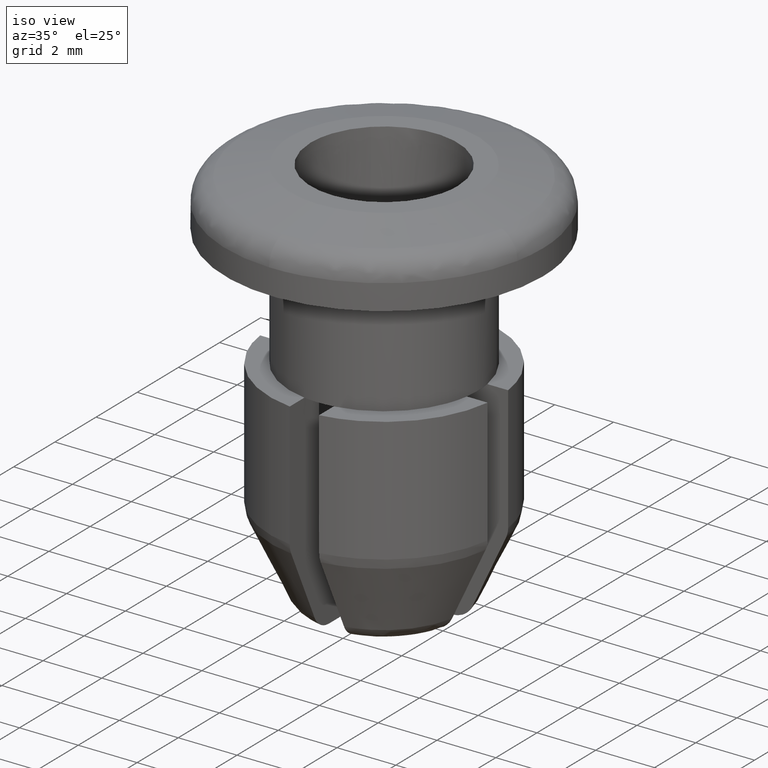
[diagram: clean part render]
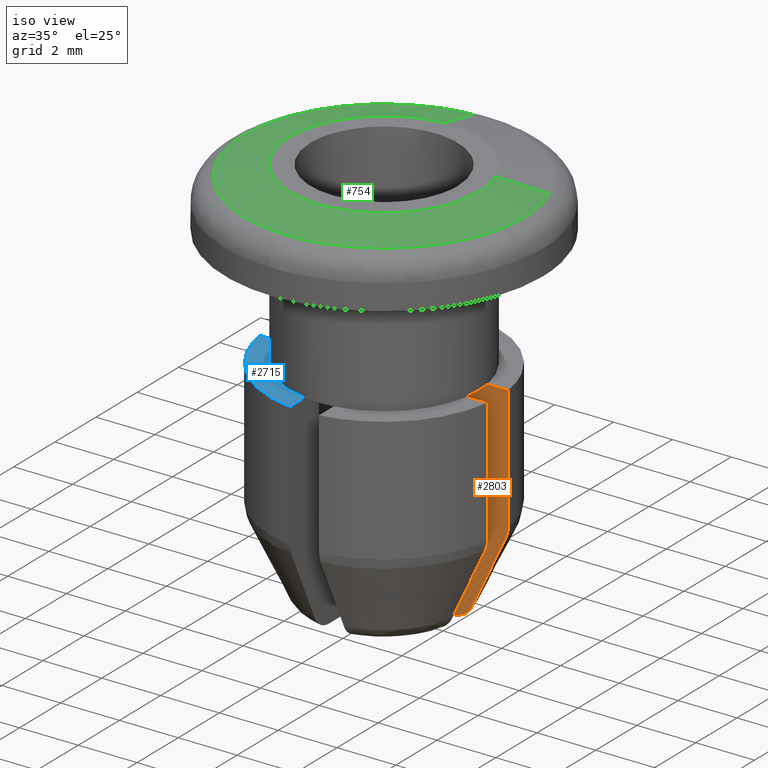
[diagram: same view with three faces highlighted in distinct colors, each labeled with its STEP entity id]
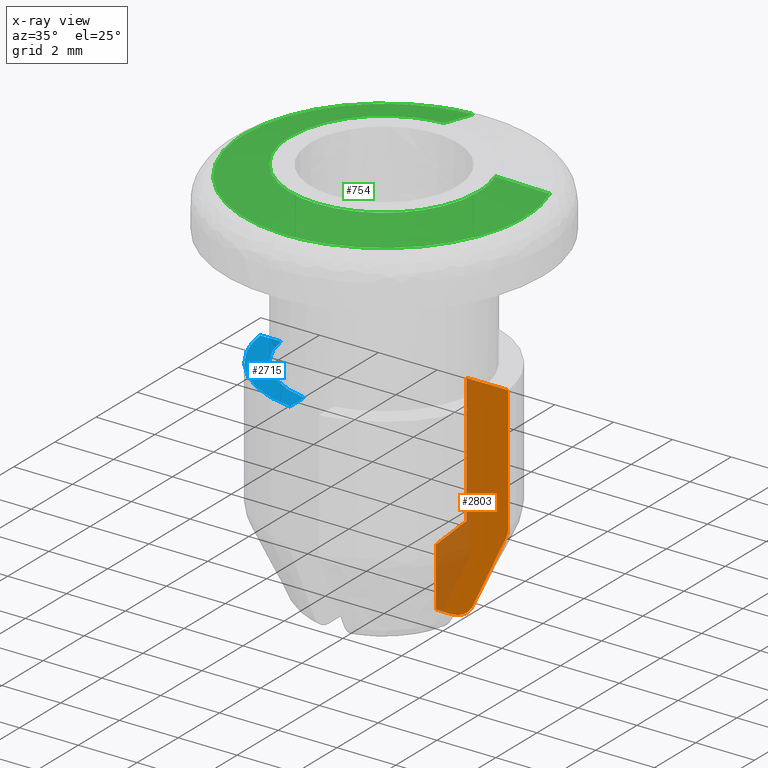
[diagram: x-ray of the same camera — body ghosted, the three highlighted faces saturated]
A machine part, iso view with three faces highlighted in distinct colors.
The next image is the same camera in x-ray (body ghosted, the three faces saturated) — at least one of them is partly hidden behind the body in this view.
Their STEP definitions:

[orange] entity #2803 — the highlighted face is a freeform B-spline surface patch.
#126=CARTESIAN_POINT('',(2.449489742783180,0.500000000000000,-10.500363376784501));
#127=VERTEX_POINT('',#126);
#141=CARTESIAN_POINT('',(2.449489742783180,0.500000000000000,-6.099999999999901));
#142=VERTEX_POINT('',#141);
#143=CARTESIAN_POINT('',(2.449489742783180,0.500000000000000,-6.099999999999901));
#144=CARTESIAN_POINT('',(2.449489742783180,0.500000000000000,-10.500363376784501));
#145=QUASI_UNIFORM_CURVE('',1,(#143,#144),.UNSPECIFIED.,.F.,.U.);
#146=EDGE_CURVE('',#142,#127,#145,.T.);
#897=CARTESIAN_POINT('',(3.160696125855820,0.500000000000000,-6.099999999999881));
#898=VERTEX_POINT('',#897);
#1186=CARTESIAN_POINT('',(1.414213562373094,0.500000000000000,-11.500363376784501));
#1187=VERTEX_POINT('',#1186);
#1201=CARTESIAN_POINT('',(2.449489742783180,0.500000000000000,-10.500363376784501));
#1202=CARTESIAN_POINT('',(2.278134806261935,0.500000000000000,-10.668256240538120));
#1203=CARTESIAN_POINT('',(2.106452249628085,0.500000000000000,-10.835812576086161));
#1204=CARTESIAN_POINT('',(1.761745751085505,0.500000000000000,-11.169547389223640));
#1205=CARTESIAN_POINT('',(1.588763213320622,0.500000000000000,-11.335796387666170));
#1206=CARTESIAN_POINT('',(1.414213562373093,0.500000000000000,-11.500363376784501));
#1207=B_SPLINE_CURVE_WITH_KNOTS('',3,(#1201,#1202,#1203,#1204,#1205,#1206),.UNSPECIFIED.,.F.,.U.,(4,2,4),(0.0,0.500000000000000,1.0),.UNSPECIFIED.);
#1208=EDGE_CURVE('',#127,#1187,#1207,.T.);
#1415=CARTESIAN_POINT('',(2.449489742783180,0.500000000000000,-6.099999999999901));
#1416=CARTESIAN_POINT('',(3.160696125855820,0.500000000000000,-6.099999999999881));
#1417=QUASI_UNIFORM_CURVE('',1,(#1415,#1416),.UNSPECIFIED.,.F.,.U.);
#1418=EDGE_CURVE('',#142,#898,#1417,.T.);
#1505=CARTESIAN_POINT('',(1.414213562373094,0.500000000000000,-13.500299999999999));
#1506=VERTEX_POINT('',#1505);
#1507=CARTESIAN_POINT('',(1.959617758645800,0.500000000000000,-13.500299999999999));
#1508=VERTEX_POINT('',#1507);
#1509=CARTESIAN_POINT('',(1.414213562373094,0.500000000000000,-13.500299999999999));
#1510=CARTESIAN_POINT('',(1.959617758645800,0.500000000000000,-13.500299999999999));
#1511=QUASI_UNIFORM_CURVE('',1,(#1509,#1510),.UNSPECIFIED.,.F.,.U.);
#1512=EDGE_CURVE('',#1506,#1508,#1511,.T.);
#1725=CARTESIAN_POINT('',(2.659426441461120,0.500000000000000,-13.058784187287420));
#1726=VERTEX_POINT('',#1725);
#1727=CARTESIAN_POINT('',(1.959617758645800,0.500000000000000,-13.500299999999999));
#1728=CARTESIAN_POINT('',(1.995870260834213,0.500000000000000,-13.500299999999999));
#1729=CARTESIAN_POINT('',(2.032074988127340,0.500000000000000,-13.497844263011711));
#1730=CARTESIAN_POINT('',(2.104385885043721,0.500000000000000,-13.487866703302871));
#1731=CARTESIAN_POINT('',(2.140582571796804,0.500000000000000,-13.480273188047519));
#1732=CARTESIAN_POINT('',(2.210582539605143,0.500000000000000,-13.460385630809400));
#1733=CARTESIAN_POINT('',(2.244676879156075,0.500000000000000,-13.448069990180750));
#1734=CARTESIAN_POINT('',(2.311047923019859,0.500000000000000,-13.418678363481970));
#1735=CARTESIAN_POINT('',(2.343499881206968,0.500000000000000,-13.401491538657289));
#1736=CARTESIAN_POINT('',(2.436762051251562,0.500000000000000,-13.343091250395910));
#1737=CARTESIAN_POINT('',(2.492105625441049,0.500000000000000,-13.296233015496689));
#1738=CARTESIAN_POINT('',(2.564766211409184,0.500000000000000,-13.213933349785490));
#1739=CARTESIAN_POINT('',(2.587089104371746,0.500000000000000,-13.184554053184931));
#1740=CARTESIAN_POINT('',(2.626723384111980,0.500000000000000,-13.123628106619501));
#1741=CARTESIAN_POINT('',(2.644237852533169,0.500000000000000,-13.091863515307750));
#1742=CARTESIAN_POINT('',(2.659426441461120,0.500000000000000,-13.058784187287420));
#1743=B_SPLINE_CURVE_WITH_KNOTS('',3,(#1727,#1728,#1729,#1730,#1731,#1732,#1733,#1734,#1735,#1736,#1737,#1738,#1739,#1740,#1741,#1742),.UNSPECIFIED.,.F.,.U.,(4,2,2,2,2,2,2,4),(0.0,0.124999999999999,0.249999999999999,0.374999999999998,0.499999999999997,0.749999999999998,0.874999999999999,1.0),.UNSPECIFIED.);
#1744=EDGE_CURVE('',#1508,#1726,#1743,.T.);
#2023=CARTESIAN_POINT('',(3.796920079485475,0.500000000000000,-10.650999999999881));
#2024=VERTEX_POINT('',#2023);
#2025=CARTESIAN_POINT('',(2.659426441461120,0.500000000000000,-13.058784187287420));
#2026=CARTESIAN_POINT('',(3.040188986431455,0.500000000000000,-12.256946791583839));
#2027=CARTESIAN_POINT('',(3.418877663586606,0.500000000000000,-11.454123765753140));
#2028=CARTESIAN_POINT('',(3.796920079485477,0.500000000000000,-10.650999999999881));
#2029=QUASI_UNIFORM_CURVE('',3,(#2025,#2026,#2027,#2028),.UNSPECIFIED.,.F.,.U.);
#2030=EDGE_CURVE('',#1726,#2024,#2029,.T.);
#2230=CARTESIAN_POINT('',(3.867815921162755,0.500000000000000,-10.333900000000000));
#2231=VERTEX_POINT('',#2230);
#2232=CARTESIAN_POINT('',(3.796920079485509,0.500000000000000,-10.650999999999890));
#2233=CARTESIAN_POINT('',(3.820125297994603,0.500000000000000,-10.601702191895900));
#2234=CARTESIAN_POINT('',(3.837839464490058,0.500000000000000,-10.550220786712851));
#2235=CARTESIAN_POINT('',(3.861895604854134,0.500000000000000,-10.442735657756250));
#2236=CARTESIAN_POINT('',(3.867832769548388,0.500000000000000,-10.388334337714850));
#2237=CARTESIAN_POINT('',(3.867815921162755,0.500000000000000,-10.333900000000000));
#2238=B_SPLINE_CURVE_WITH_KNOTS('',3,(#2232,#2233,#2234,#2235,#2236,#2237),.UNSPECIFIED.,.F.,.U.,(4,2,4),(0.0,0.500000000000000,1.0),.UNSPECIFIED.);
#2239=EDGE_CURVE('',#2024,#2231,#2238,.T.);
#2468=CARTESIAN_POINT('',(3.867815921162740,0.500000000000000,-6.099999999999901));
#2469=VERTEX_POINT('',#2468);
#2470=CARTESIAN_POINT('',(3.867815921162755,0.500000000000000,-10.333900000000000));
#2471=CARTESIAN_POINT('',(3.867815921162740,0.500000000000000,-6.099999999999901));
#2472=QUASI_UNIFORM_CURVE('',1,(#2470,#2471),.UNSPECIFIED.,.F.,.U.);
#2473=EDGE_CURVE('',#2231,#2469,#2472,.T.);
#2639=CARTESIAN_POINT('',(3.160696125855820,0.500000000000000,-6.099999999999881));
#2640=CARTESIAN_POINT('',(3.867815921162740,0.500000000000000,-6.099999999999901));
#2641=QUASI_UNIFORM_CURVE('',1,(#2639,#2640),.UNSPECIFIED.,.F.,.U.);
#2642=EDGE_CURVE('',#898,#2469,#2641,.T.);
#2782=CARTESIAN_POINT('',(1.291656106274444,0.500000000000000,-5.730354890405649));
#2783=CARTESIAN_POINT('',(1.291656106274444,0.500000000000000,-13.869945175758071));
#2784=CARTESIAN_POINT('',(3.990373421135234,0.500000000000000,-5.730354890405649));
#2785=CARTESIAN_POINT('',(3.990373421135234,0.500000000000000,-13.869945175758071));
#2786=B_SPLINE_SURFACE_WITH_KNOTS('',1,1,((#2782,#2784),(#2783,#2785)),.UNSPECIFIED.,.F.,.F.,.U.,(2,2),(2,2),(0.0,8.139590285352423),(0.0,2.698717314860790),.UNSPECIFIED.);
#2787=ORIENTED_EDGE('',*,*,#1418,.F.);
#2788=ORIENTED_EDGE('',*,*,#146,.T.);
#2789=ORIENTED_EDGE('',*,*,#1208,.T.);
#2790=CARTESIAN_POINT('',(1.414213562373094,0.500000000000000,-11.500363376784501));
#2791=CARTESIAN_POINT('',(1.414213562373094,0.500000000000000,-13.500299999999999));
#2792=QUASI_UNIFORM_CURVE('',1,(#2790,#2791),.UNSPECIFIED.,.F.,.U.);
#2793=EDGE_CURVE('',#1187,#1506,#2792,.T.);
#2794=ORIENTED_EDGE('',*,*,#2793,.T.);
#2795=ORIENTED_EDGE('',*,*,#1512,.T.);
#2796=ORIENTED_EDGE('',*,*,#1744,.T.);
#2797=ORIENTED_EDGE('',*,*,#2030,.T.);
#2798=ORIENTED_EDGE('',*,*,#2239,.T.);
#2799=ORIENTED_EDGE('',*,*,#2473,.T.);
#2800=ORIENTED_EDGE('',*,*,#2642,.F.);
#2801=EDGE_LOOP('',(#2787,#2788,#2789,#2794,#2795,#2796,#2797,#2798,#2799,#2800));
#2802=FACE_OUTER_BOUND('',#2801,.T.);
#2803=ADVANCED_FACE('',(#2802),#2786,.T.);

[blue] entity #2715 — the highlighted face is a freeform B-spline surface patch.
#845=CARTESIAN_POINT('',(-2.321609423222823,-2.202300998047945,-6.099999999999911));
#846=VERTEX_POINT('',#845);
#852=CARTESIAN_POINT('',(-0.500000000000011,-3.160696125855820,-6.100000000000001));
#853=VERTEX_POINT('',#852);
#854=CARTESIAN_POINT('',(-2.321609423222822,-2.202300998047945,-6.099999999999911));
#855=CARTESIAN_POINT('',(-1.573570263137163,-2.990864825979360,-6.099999999999946));
#856=CARTESIAN_POINT('',(-0.500000000000011,-3.160696125855820,-6.100000000000001));
#864=(BOUNDED_CURVE()B_SPLINE_CURVE(2,(#854,#855,#856),.UNSPECIFIED.,.F.,.U.)B_SPLINE_CURVE_WITH_KNOTS((3,3),(0.479718116204390,1.0),.UNSPECIFIED.)CURVE()GEOMETRIC_REPRESENTATION_ITEM()RATIONAL_B_SPLINE_CURVE((0.904610816140017,0.900577880386593,1.0))REPRESENTATION_ITEM(''));
#865=EDGE_CURVE('',#846,#853,#864,.T.);
#1040=CARTESIAN_POINT('',(-3.160696125855820,-0.500000000000011,-6.099999999999881));
#1041=VERTEX_POINT('',#1040);
#1055=CARTESIAN_POINT('',(-3.160696125855820,-0.500000000000011,-6.099999999999881));
#1056=CARTESIAN_POINT('',(-3.005442021550379,-1.481422092002839,-6.099999999999880));
#1057=CARTESIAN_POINT('',(-2.321609423222822,-2.202300998047945,-6.099999999999911));
#1065=(BOUNDED_CURVE()B_SPLINE_CURVE(2,(#1055,#1056,#1057),.UNSPECIFIED.,.F.,.U.)B_SPLINE_CURVE_WITH_KNOTS((3,3),(0.0,0.479718116204391),.UNSPECIFIED.)CURVE()GEOMETRIC_REPRESENTATION_ITEM()RATIONAL_B_SPLINE_CURVE((1.0,0.908329324130901,0.904610816140017))REPRESENTATION_ITEM(''));
#1066=EDGE_CURVE('',#1041,#846,#1065,.T.);
#2603=CARTESIAN_POINT('',(-3.867815921162740,-0.500000000000011,-6.099999999999901));
#2604=VERTEX_POINT('',#2603);
#2611=CARTESIAN_POINT('',(-0.500000000000011,-3.867815921162740,-6.099999999999901));
#2612=VERTEX_POINT('',#2611);
#2618=CARTESIAN_POINT('',(-0.500000000000011,-3.867815921162742,-6.099999999999901));
#2619=CARTESIAN_POINT('',(-3.482289609849434,-3.482289609849437,-6.099999999999900));
#2620=CARTESIAN_POINT('',(-3.867815921162741,-0.500000000000013,-6.099999999999901));
#2628=(BOUNDED_CURVE()B_SPLINE_CURVE(2,(#2618,#2619,#2620),.UNSPECIFIED.,.F.,.U.)CURVE()GEOMETRIC_REPRESENTATION_ITEM()QUASI_UNIFORM_CURVE()RATIONAL_B_SPLINE_CURVE((1.0,0.791926219699679,1.0))REPRESENTATION_ITEM(''));
#2629=EDGE_CURVE('',#2612,#2604,#2628,.T.);
#2695=CARTESIAN_POINT('',(-0.331777601265414,-4.036038383126630,-6.099999999999900));
#2696=CARTESIAN_POINT('',(-4.036038410229200,-4.036038383126630,-6.099999999999901));
#2697=CARTESIAN_POINT('',(-0.331777601265414,-0.331777507925501,-6.099999999999900));
#2698=CARTESIAN_POINT('',(-4.036038410229200,-0.331777507925501,-6.099999999999901));
#2699=B_SPLINE_SURFACE_WITH_KNOTS('',1,1,((#2695,#2697),(#2696,#2698)),.UNSPECIFIED.,.F.,.F.,.U.,(2,2),(2,2),(0.0,3.704260808963786),(0.0,3.704260875201129),.UNSPECIFIED.);
#2700=CARTESIAN_POINT('',(-3.160696125855820,-0.500000000000011,-6.099999999999881));
#2701=CARTESIAN_POINT('',(-3.867815921162740,-0.500000000000011,-6.099999999999901));
#2702=QUASI_UNIFORM_CURVE('',1,(#2700,#2701),.UNSPECIFIED.,.F.,.U.);
#2703=EDGE_CURVE('',#1041,#2604,#2702,.T.);
#2704=ORIENTED_EDGE('',*,*,#2703,.T.);
#2705=ORIENTED_EDGE('',*,*,#2629,.F.);
#2706=CARTESIAN_POINT('',(-0.500000000000011,-3.867815921162740,-6.099999999999901));
#2707=CARTESIAN_POINT('',(-0.500000000000011,-3.160696125855820,-6.100000000000001));
#2708=QUASI_UNIFORM_CURVE('',1,(#2706,#2707),.UNSPECIFIED.,.F.,.U.);
#2709=EDGE_CURVE('',#2612,#853,#2708,.T.);
#2710=ORIENTED_EDGE('',*,*,#2709,.T.);
#2711=ORIENTED_EDGE('',*,*,#865,.F.);
#2712=ORIENTED_EDGE('',*,*,#1066,.F.);
#2713=EDGE_LOOP('',(#2704,#2705,#2710,#2711,#2712));
#2714=FACE_OUTER_BOUND('',#2713,.T.);
#2715=ADVANCED_FACE('',(#2714),#2699,.F.);

[green] entity #754 — the highlighted face is a freeform B-spline surface patch.
#588=CARTESIAN_POINT('',(2.959032740807782,1.111420429589253,0.008905034524213));
#589=CARTESIAN_POINT('',(3.125991545662793,0.666911262059646,0.008905034524213));
#590=CARTESIAN_POINT('',(3.154979230995207,0.192966796288025,0.008905034524213));
#591=CARTESIAN_POINT('',(3.347946027283231,-2.962012434707182,0.008905034524213));
#592=CARTESIAN_POINT('',(0.192966796288025,-3.154979230995207,0.008905034524213));
#593=CARTESIAN_POINT('',(-2.962012434707182,-3.347946027283231,0.008905034524213));
#594=CARTESIAN_POINT('',(-3.154979230995207,-0.192966796288025,0.008905034524213));
#595=CARTESIAN_POINT('',(-3.347946027283231,2.962012434707182,0.008905034524213));
#596=CARTESIAN_POINT('',(-0.192966796288025,3.154979230995207,0.008905034524213));
#597=CARTESIAN_POINT('',(4.498270282245640,1.689562072279477,-0.365329041355827));
#598=CARTESIAN_POINT('',(4.752078163409377,1.013826940691061,-0.365329041355827));
#599=CARTESIAN_POINT('',(4.796144740194292,0.293344778931245,-0.365329041355827));
#600=CARTESIAN_POINT('',(5.089489519125537,-4.502799961263047,-0.365329041355827));
#601=CARTESIAN_POINT('',(0.293344778931245,-4.796144740194292,-0.365329041355827));
#602=CARTESIAN_POINT('',(-4.502799961263047,-5.089489519125537,-0.365329041355827));
#603=CARTESIAN_POINT('',(-4.796144740194292,-0.293344778931245,-0.365329041355827));
#604=CARTESIAN_POINT('',(-5.089489519125537,4.502799961263047,-0.365329041355827));
#605=CARTESIAN_POINT('',(-0.293344778931245,4.796144740194292,-0.365329041355827));
#613=(BOUNDED_SURFACE()B_SPLINE_SURFACE(2,1,((#588,#597),(#589,#598),(#590,#599),(#591,#600),(#592,#601),(#593,#602),(#594,#603),(#595,#604),(#596,#605)),.UNSPECIFIED.,.F.,.F.,.U.)B_SPLINE_SURFACE_WITH_KNOTS((3,2,2,2,3),(2,2),(0.0,1.592272467914259,9.553634807485555,17.514997147056850,25.476359486628141),(0.0,1.0),.UNSPECIFIED.)GEOMETRIC_REPRESENTATION_ITEM()RATIONAL_B_SPLINE_SURFACE(((0.906274169979695,0.906274169979695),(0.941421356237309,0.941421356237309),(1.0,1.0),(0.707106781186548,0.707106781186548),(1.0,1.0),(0.707106781186548,0.707106781186548),(1.0,1.0),(0.707106781186548,0.707106781186548),(1.0,1.0)))REPRESENTATION_ITEM('')SURFACE());
#614=CARTESIAN_POINT('',(4.460727903092842,1.675461056579439,-0.356201380946647));
#615=VERTEX_POINT('',#614);
#616=CARTESIAN_POINT('',(4.765004006035680,0.0,-0.356201380946426));
#617=VERTEX_POINT('',#616);
#618=CARTESIAN_POINT('',(4.460727903092843,1.675461056579439,-0.356201380946647));
#619=CARTESIAN_POINT('',(4.765004006035681,0.865359922143831,-0.356201380946426));
#620=CARTESIAN_POINT('',(4.765004006035680,0.0,-0.356201380946426));
#628=(BOUNDED_CURVE()B_SPLINE_CURVE(2,(#618,#619,#620),.UNSPECIFIED.,.F.,.U.)B_SPLINE_CURVE_WITH_KNOTS((3,3),(0.440284170898265,0.500000000000000),.UNSPECIFIED.)CURVE()GEOMETRIC_REPRESENTATION_ITEM()RATIONAL_B_SPLINE_CURVE((0.893499554634977,0.930038554401115,1.0))REPRESENTATION_ITEM(''));
#629=EDGE_CURVE('',#615,#617,#628,.T.);
#630=ORIENTED_EDGE('',*,*,#629,.F.);
#631=CARTESIAN_POINT('',(2.995659452080346,1.125177518071799,-4.458431E-013));
#632=VERTEX_POINT('',#631);
#633=CARTESIAN_POINT('',(2.995659452080346,1.125177518071799,-4.458431E-013));
#634=CARTESIAN_POINT('',(4.460727903092842,1.675461056579439,-0.356201380946647));
#635=QUASI_UNIFORM_CURVE('',1,(#633,#634),.UNSPECIFIED.,.F.,.U.);
#636=EDGE_CURVE('',#632,#615,#635,.T.);
#637=ORIENTED_EDGE('',*,*,#636,.F.);
#638=CARTESIAN_POINT('',(3.200000000000000,0.0,0.0));
#639=VERTEX_POINT('',#638);
#640=CARTESIAN_POINT('',(2.995659452080347,1.125177518071799,-4.458431E-013));
#641=CARTESIAN_POINT('',(3.200000000000001,0.581143635433585,0.0));
#642=CARTESIAN_POINT('',(3.200000000000000,0.0,0.0));
#650=(BOUNDED_CURVE()B_SPLINE_CURVE(2,(#640,#641,#642),.UNSPECIFIED.,.F.,.U.)B_SPLINE_CURVE_WITH_KNOTS((3,3),(0.440284170897003,0.500000000000000),.UNSPECIFIED.)CURVE()GEOMETRIC_REPRESENTATION_ITEM()RATIONAL_B_SPLINE_CURVE((0.893499554633432,0.930038554399636,1.0))REPRESENTATION_ITEM(''));
#651=EDGE_CURVE('',#632,#639,#650,.T.);
#652=ORIENTED_EDGE('',*,*,#651,.T.);
#653=CARTESIAN_POINT('',(-3.200000000000000,0.0,0.0));
#654=VERTEX_POINT('',#653);
#655=CARTESIAN_POINT('',(3.200000000000000,0.0,0.0));
#656=CARTESIAN_POINT('',(3.200000000000000,-3.200000000000000,0.0));
#657=CARTESIAN_POINT('',(0.0,-3.200000000000000,0.0));
#658=CARTESIAN_POINT('',(-3.200000000000000,-3.200000000000000,0.0));
#659=CARTESIAN_POINT('',(-3.200000000000000,0.0,0.0));
#667=(BOUNDED_CURVE()B_SPLINE_CURVE(2,(#655,#656,#657,#658,#659),.UNSPECIFIED.,.F.,.U.)B_SPLINE_CURVE_WITH_KNOTS((3,2,3),(0.500000000000000,0.750000000000000,1.0),.UNSPECIFIED.)CURVE()GEOMETRIC_REPRESENTATION_ITEM()RATIONAL_B_SPLINE_CURVE((1.0,0.707106781186548,1.0,0.707106781186548,1.0))REPRESENTATION_ITEM(''));
#668=EDGE_CURVE('',#639,#654,#667,.T.);
#669=ORIENTED_EDGE('',*,*,#668,.T.);
#670=CARTESIAN_POINT('',(-0.195355326522164,3.194031354950947,-3.685828E-013));
#671=VERTEX_POINT('',#670);
#672=CARTESIAN_POINT('',(-3.200000000000000,0.0,0.0));
#673=CARTESIAN_POINT('',(-3.199999999999999,3.010259414078350,0.0));
#674=CARTESIAN_POINT('',(-0.195355326522164,3.194031354950946,-3.685828E-013));
#682=(BOUNDED_CURVE()B_SPLINE_CURVE(2,(#672,#673,#674),.UNSPECIFIED.,.F.,.U.)B_SPLINE_CURVE_WITH_KNOTS((3,3),(0.0,0.239332962240831),.UNSPECIFIED.)CURVE()GEOMETRIC_REPRESENTATION_ITEM()RATIONAL_B_SPLINE_CURVE((1.0,0.719603993284498,0.976072041670765))REPRESENTATION_ITEM(''));
#683=EDGE_CURVE('',#654,#671,#682,.T.);
#684=ORIENTED_EDGE('',*,*,#683,.T.);
#685=CARTESIAN_POINT('',(-0.290896535451600,4.756116313044315,-0.356201380946615));
#686=VERTEX_POINT('',#685);
#687=CARTESIAN_POINT('',(-0.195355326522164,3.194031354950947,-3.685828E-013));
#688=CARTESIAN_POINT('',(-0.290896535451600,4.756116313044315,-0.356201380946615));
#689=QUASI_UNIFORM_CURVE('',1,(#687,#688),.UNSPECIFIED.,.F.,.U.);
#690=EDGE_CURVE('',#671,#686,#689,.T.);
#691=ORIENTED_EDGE('',*,*,#690,.T.);
#692=CARTESIAN_POINT('',(-4.765004006035680,0.0,-0.356201380946426));
#693=VERTEX_POINT('',#692);
#694=CARTESIAN_POINT('',(-4.765004006035680,0.0,-0.356201380946426));
#695=CARTESIAN_POINT('',(-4.765004006035679,4.482468177297642,-0.356201380946426));
#696=CARTESIAN_POINT('',(-0.290896535451600,4.756116313044315,-0.356201380946615));
#704=(BOUNDED_CURVE()B_SPLINE_CURVE(2,(#694,#695,#696),.UNSPECIFIED.,.F.,.U.)B_SPLINE_CURVE_WITH_KNOTS((3,3),(0.0,0.239332962241582),.UNSPECIFIED.)CURVE()GEOMETRIC_REPRESENTATION_ITEM()RATIONAL_B_SPLINE_CURVE((1.0,0.719603993283619,0.976072041672373))REPRESENTATION_ITEM(''));
#705=EDGE_CURVE('',#693,#686,#704,.T.);
#706=ORIENTED_EDGE('',*,*,#705,.F.);
#707=CARTESIAN_POINT('',(-0.122093203260431,-4.763439558580755,-0.356201380968509));
#708=VERTEX_POINT('',#707);
#709=CARTESIAN_POINT('',(-0.122093203260431,-4.763439558580755,-0.356201380968509));
#710=CARTESIAN_POINT('',(-4.765004006035681,-4.644435665290682,-0.356201380946426));
#711=CARTESIAN_POINT('',(-4.765004006035680,0.0,-0.356201380946426));
#719=(BOUNDED_CURVE()B_SPLINE_CURVE(2,(#709,#710,#711),.UNSPECIFIED.,.F.,.U.)B_SPLINE_CURVE_WITH_KNOTS((3,3),(0.754506356912865,1.0),.UNSPECIFIED.)CURVE()GEOMETRIC_REPRESENTATION_ITEM()RATIONAL_B_SPLINE_CURVE((0.989631280360132,0.712386306711872,1.0))REPRESENTATION_ITEM(''));
#720=EDGE_CURVE('',#708,#693,#719,.T.);
#721=ORIENTED_EDGE('',*,*,#720,.F.);
#722=CARTESIAN_POINT('',(4.669013250028817,-0.951618857221096,-0.356201380964727));
#723=VERTEX_POINT('',#722);
#724=CARTESIAN_POINT('',(4.669013250028818,-0.951618857221096,-0.356201380964728));
#725=CARTESIAN_POINT('',(3.891784952833663,-4.765004006035682,-0.356201380946426));
#726=CARTESIAN_POINT('',(0.0,-4.765004006035680,-0.356201380946426));
#727=CARTESIAN_POINT('',(-0.061056624700152,-4.765004006035680,-0.356201380946426));
#728=CARTESIAN_POINT('',(-0.122093203260431,-4.763439558580755,-0.356201380968509));
#736=(BOUNDED_CURVE()B_SPLINE_CURVE(2,(#724,#725,#726,#727,#728),.UNSPECIFIED.,.F.,.U.)B_SPLINE_CURVE_WITH_KNOTS((3,2,3),(0.534232961491520,0.750000000000000,0.754506356912864),.UNSPECIFIED.)CURVE()GEOMETRIC_REPRESENTATION_ITEM()RATIONAL_B_SPLINE_CURVE((0.930770871026441,0.747213190309620,1.0,0.994720474474676,0.989631280360134))REPRESENTATION_ITEM(''));
#737=EDGE_CURVE('',#723,#708,#736,.T.);
#738=ORIENTED_EDGE('',*,*,#737,.F.);
#739=CARTESIAN_POINT('',(4.765004006035680,0.0,-0.356201380946426));
#740=CARTESIAN_POINT('',(4.765004006035679,-0.480650770906381,-0.356201380946426));
#741=CARTESIAN_POINT('',(4.669013250028817,-0.951618857221096,-0.356201380964728));
#749=(BOUNDED_CURVE()B_SPLINE_CURVE(2,(#739,#740,#741),.UNSPECIFIED.,.F.,.U.)B_SPLINE_CURVE_WITH_KNOTS((3,3),(0.500000000000000,0.534232961491520),.UNSPECIFIED.)CURVE()GEOMETRIC_REPRESENTATION_ITEM()RATIONAL_B_SPLINE_CURVE((1.0,0.959893590876926,0.930770871026440))REPRESENTATION_ITEM(''));
#750=EDGE_CURVE('',#617,#723,#749,.T.);
#751=ORIENTED_EDGE('',*,*,#750,.F.);
#752=EDGE_LOOP('',(#630,#637,#652,#669,#684,#691,#706,#721,#738,#751));
#753=FACE_OUTER_BOUND('',#752,.T.);
#754=ADVANCED_FACE('',(#753),#613,.T.);